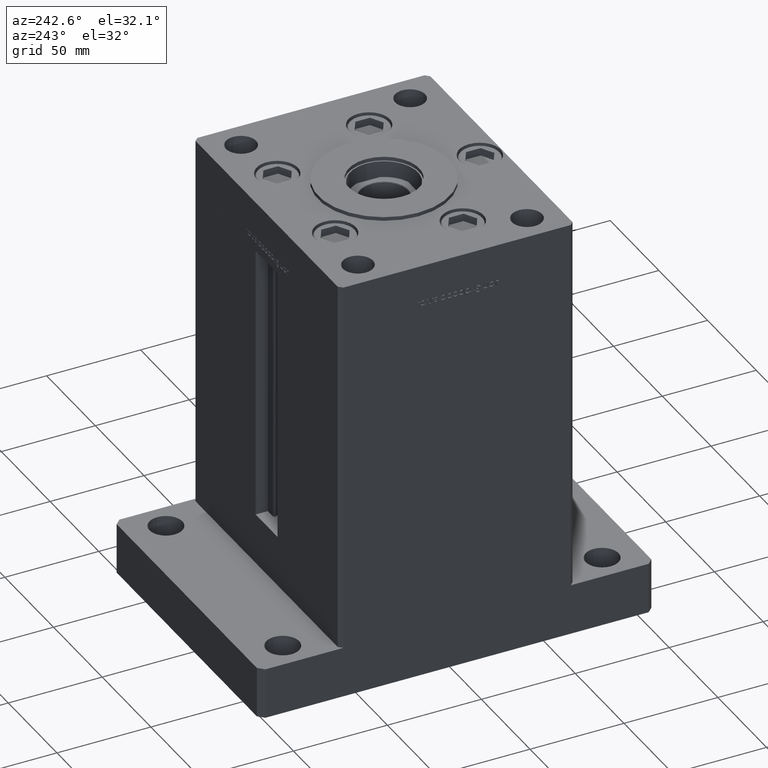
[diagram: clean part render]
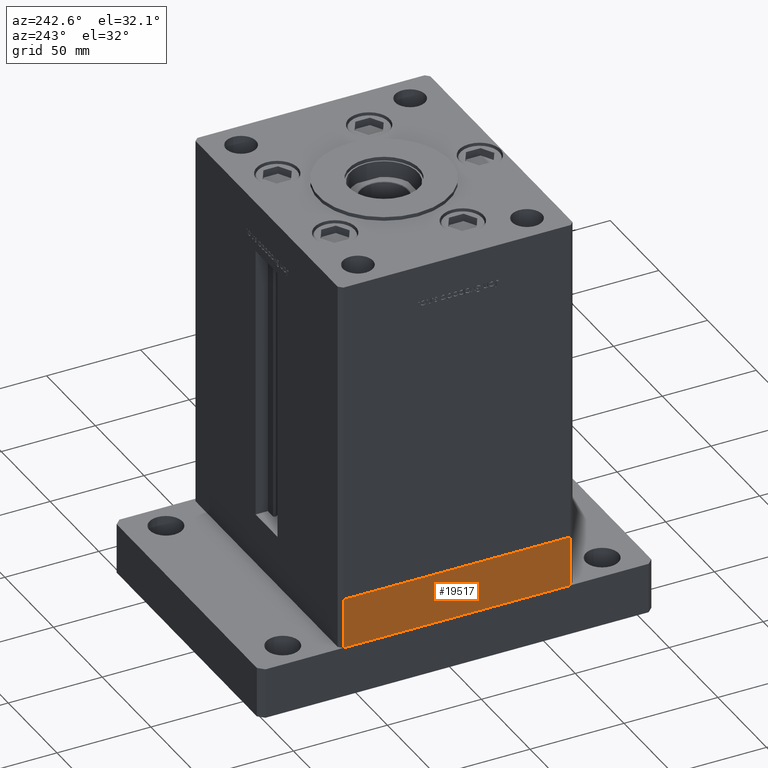
[diagram: same view with one face highlighted and labeled with its STEP entity id]
A machine part, auxiliary view. The second image highlights one B-rep face of the part: STEP entity #19517.
In plain terms, the highlighted planar face has unit normal (-1, 0, 0).
Its self-contained STEP definition (entity closure, byte-faithful):
#289 = DIRECTION ( 'NONE',  ( -6.881547673296424104E-16, 1.000000000000000000, 0.000000000000000000 ) ) ;
#2060 = CARTESIAN_POINT ( 'NONE',  ( 75.00000000000001421, -60.50000000000000711, 0.000000000000000000 ) ) ;
#2230 = VERTEX_POINT ( 'NONE', #36293 ) ;
#3283 = LINE ( 'NONE', #37186, #44769 ) ;
#3882 = VERTEX_POINT ( 'NONE', #20878 ) ;
#4741 = EDGE_CURVE ( 'NONE', #2230, #39561, #3283, .T. ) ;
#7487 = EDGE_LOOP ( 'NONE', ( #47308, #49277, #23622, #24894 ) ) ;
#10715 = LINE ( 'NONE', #2060, #12039 ) ;
#11016 = DIRECTION ( 'NONE',  ( -6.881547673296424104E-16, 1.000000000000000000, 0.000000000000000000 ) ) ;
#12039 = VECTOR ( 'NONE', #51691, 1000.000000000000000 ) ;
#12704 = EDGE_CURVE ( 'NONE', #39561, #38577, #19828, .T. ) ;
#16043 = DIRECTION ( 'NONE',  ( 0.000000000000000000, 0.000000000000000000, 1.000000000000000000 ) ) ;
#16856 = EDGE_CURVE ( 'NONE', #3882, #38577, #10715, .T. ) ;
#18884 = DIRECTION ( 'NONE',  ( 1.000000000000000000, 6.881547673296424104E-16, -0.000000000000000000 ) ) ;
#19517 = ADVANCED_FACE ( 'NONE', ( #31374 ), #51458, .T. ) ;
#19828 = LINE ( 'NONE', #43718, #42398 ) ;
#20878 = CARTESIAN_POINT ( 'NONE',  ( 75.00000000000001421, -60.50000000000000711, 0.000000000000000000 ) ) ;
#22355 = CARTESIAN_POINT ( 'NONE',  ( 74.99999999999992895, 60.50000000000002842, 0.000000000000000000 ) ) ;
#23229 = CARTESIAN_POINT ( 'NONE',  ( 75.00000000000001421, -60.50000000000000711, -27.00000000000000000 ) ) ;
#23622 = ORIENTED_EDGE ( 'NONE', *, *, #4741, .T. ) ;
#24715 = CARTESIAN_POINT ( 'NONE',  ( 74.99999999999992895, 60.50000000000002842, -27.00000000000000000 ) ) ;
#24894 = ORIENTED_EDGE ( 'NONE', *, *, #12704, .T. ) ;
#25133 = AXIS2_PLACEMENT_3D ( 'NONE', #23229, #18884, #11016 ) ;
#29146 = VECTOR ( 'NONE', #16043, 1000.000000000000000 ) ;
#31374 = FACE_OUTER_BOUND ( 'NONE', #7487, .T. ) ;
#32340 = LINE ( 'NONE', #41812, #29146 ) ;
#33819 = EDGE_CURVE ( 'NONE', #2230, #3882, #32340, .T. ) ;
#36293 = CARTESIAN_POINT ( 'NONE',  ( 75.00000000000001421, -60.50000000000000711, -27.00000000000000000 ) ) ;
#37186 = CARTESIAN_POINT ( 'NONE',  ( 75.00000000000001421, -60.50000000000000711, -27.00000000000000000 ) ) ;
#38577 = VERTEX_POINT ( 'NONE', #22355 ) ;
#39561 = VERTEX_POINT ( 'NONE', #24715 ) ;
#41812 = CARTESIAN_POINT ( 'NONE',  ( 75.00000000000001421, -60.50000000000000711, -27.00000000000000000 ) ) ;
#42398 = VECTOR ( 'NONE', #43988, 1000.000000000000000 ) ;
#43718 = CARTESIAN_POINT ( 'NONE',  ( 74.99999999999992895, 60.50000000000002842, -27.00000000000000000 ) ) ;
#43988 = DIRECTION ( 'NONE',  ( 0.000000000000000000, 0.000000000000000000, 1.000000000000000000 ) ) ;
#44769 = VECTOR ( 'NONE', #289, 1000.000000000000000 ) ;
#47308 = ORIENTED_EDGE ( 'NONE', *, *, #16856, .F. ) ;
#49277 = ORIENTED_EDGE ( 'NONE', *, *, #33819, .F. ) ;
#51458 = PLANE ( 'NONE',  #25133 ) ;
#51691 = DIRECTION ( 'NONE',  ( -6.881547673296424104E-16, 1.000000000000000000, 0.000000000000000000 ) ) ;